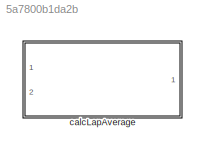
MODEL slx_5a7800b1da2b
KIND library
CONFIG AbsTol = auto
CONFIG EnableMultiTasking = off
CONFIG FixedStep = auto
CONFIG MaxStep = auto
CONFIG MinStep = auto
CONFIG RelTol = 1e-3
CONFIG SampleTimeConstraint = Unconstrained
CONFIG SolverName = VariableStepAuto
CONFIG StartTime = 0.0
CONFIG StopTime = 10.0
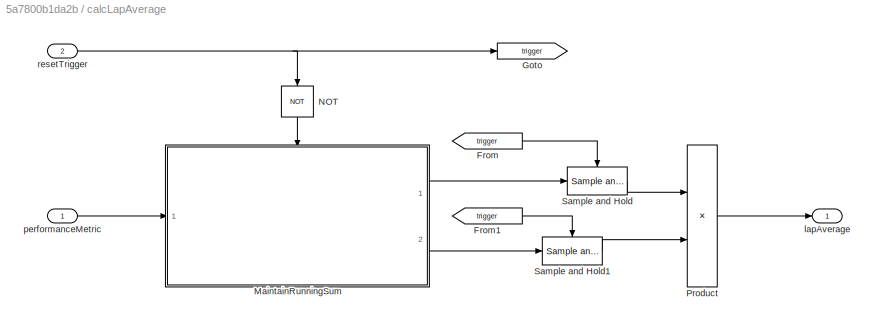
BLOCK [SubSystem] calcLapAverage
  Ports = [2, 1]
  RequestExecContextInheritance = off
BLOCK [From] calcLapAverage/From
  GotoTag = trigger
BLOCK [From] calcLapAverage/From1
  GotoTag = trigger
BLOCK [Goto] calcLapAverage/Goto
  GotoTag = trigger
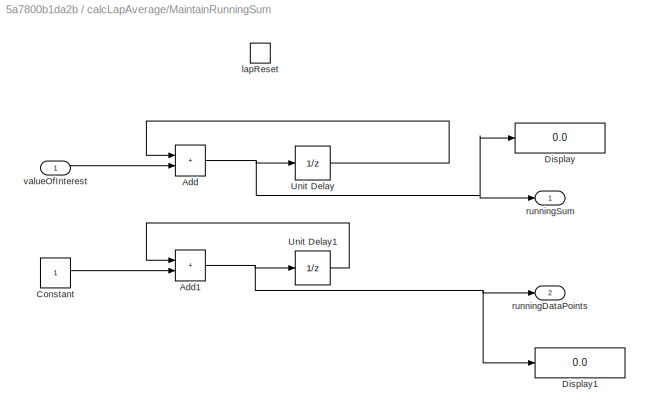
BLOCK [SubSystem] calcLapAverage/MaintainRunningSum
  Ports = [1, 2, 1]
  RequestExecContextInheritance = off
  TreatAsAtomicUnit = on
BLOCK [Sum] calcLapAverage/MaintainRunningSum/Add
  IconShape = rectangular
  Ports = [2, 1]
BLOCK [Sum] calcLapAverage/MaintainRunningSum/Add1
  IconShape = rectangular
  Ports = [2, 1]
BLOCK [Constant] calcLapAverage/MaintainRunningSum/Constant
BLOCK [Display] calcLapAverage/MaintainRunningSum/Display
  Decimation = 1
  Ports = [1]
BLOCK [Display] calcLapAverage/MaintainRunningSum/Display1
  Decimation = 1
  Ports = [1]
BLOCK [UnitDelay] calcLapAverage/MaintainRunningSum/Unit Delay
  HasFrameUpgradeWarning = on
  SampleTime = -1
BLOCK [UnitDelay] calcLapAverage/MaintainRunningSum/Unit Delay1
  HasFrameUpgradeWarning = on
  SampleTime = -1
BLOCK [EnablePort] calcLapAverage/MaintainRunningSum/lapReset
  Ports = []
  StatesWhenEnabling = reset
BLOCK [Outport] calcLapAverage/MaintainRunningSum/runningDataPoints
  Port = 2
BLOCK [Outport] calcLapAverage/MaintainRunningSum/runningSum
BLOCK [Inport] calcLapAverage/MaintainRunningSum/valueOfInterest
BLOCK [Logic] calcLapAverage/NOT
  AllPortsSameDT = off
  IconShape = distinctive
  NameLocation = left
  Operator = NOT
  OutDataTypeStr = boolean
  Ports = [1, 1]
BLOCK [Product] calcLapAverage/Product
  Inputs = */
  Ports = [2, 1]
BLOCK [Reference] calcLapAverage/Sample and Hold  REF=dspsigops/Sample
and Hold
  Ports = [1, 1, 0, 1]
  SourceBlock = dspsigops/Sample\nand Hold
  SourceProductBaseCode = DS
  SourceType = Sample and Hold
BLOCK [Reference] calcLapAverage/Sample and Hold1  REF=dspsigops/Sample
and Hold
  Ports = [1, 1, 0, 1]
  SourceBlock = dspsigops/Sample\nand Hold
  SourceProductBaseCode = DS
  SourceType = Sample and Hold
BLOCK [Outport] calcLapAverage/lapAverage
BLOCK [Inport] calcLapAverage/performanceMetric
BLOCK [Inport] calcLapAverage/resetTrigger
  Port = 2
LINE calcLapAverage/From1:1 -> calcLapAverage/Sample and Hold1:trigger
LINE calcLapAverage/From:1 -> calcLapAverage/Sample and Hold:trigger
NET calcLapAverage/MaintainRunningSum/Add1:1 -> calcLapAverage/MaintainRunningSum/Display1:1, calcLapAverage/MaintainRunningSum/Unit Delay1:1, calcLapAverage/MaintainRunningSum/runningDataPoints:1
NET calcLapAverage/MaintainRunningSum/Add:1 -> calcLapAverage/MaintainRunningSum/Display:1, calcLapAverage/MaintainRunningSum/Unit Delay:1, calcLapAverage/MaintainRunningSum/runningSum:1
LINE calcLapAverage/MaintainRunningSum/Constant:1 -> calcLapAverage/MaintainRunningSum/Add1:2
LINE calcLapAverage/MaintainRunningSum/Unit Delay1:1 -> calcLapAverage/MaintainRunningSum/Add1:1
LINE calcLapAverage/MaintainRunningSum/Unit Delay:1 -> calcLapAverage/MaintainRunningSum/Add:1
LINE calcLapAverage/MaintainRunningSum/valueOfInterest:1 -> calcLapAverage/MaintainRunningSum/Add:2
LINE calcLapAverage/MaintainRunningSum:1 -> calcLapAverage/Sample and Hold:1
LINE calcLapAverage/MaintainRunningSum:2 -> calcLapAverage/Sample and Hold1:1
LINE calcLapAverage/NOT:1 -> calcLapAverage/MaintainRunningSum:enable
LINE calcLapAverage/Product:1 -> calcLapAverage/lapAverage:1
LINE calcLapAverage/Sample and Hold1:1 -> calcLapAverage/Product:2
LINE calcLapAverage/Sample and Hold:1 -> calcLapAverage/Product:1
LINE calcLapAverage/performanceMetric:1 -> calcLapAverage/MaintainRunningSum:1
NET calcLapAverage/resetTrigger:1 -> calcLapAverage/Goto:1, calcLapAverage/NOT:1
note: NET lines group one-source signal fan-out (src -> all destinations, sorted); 1:1 wires keep LINE
